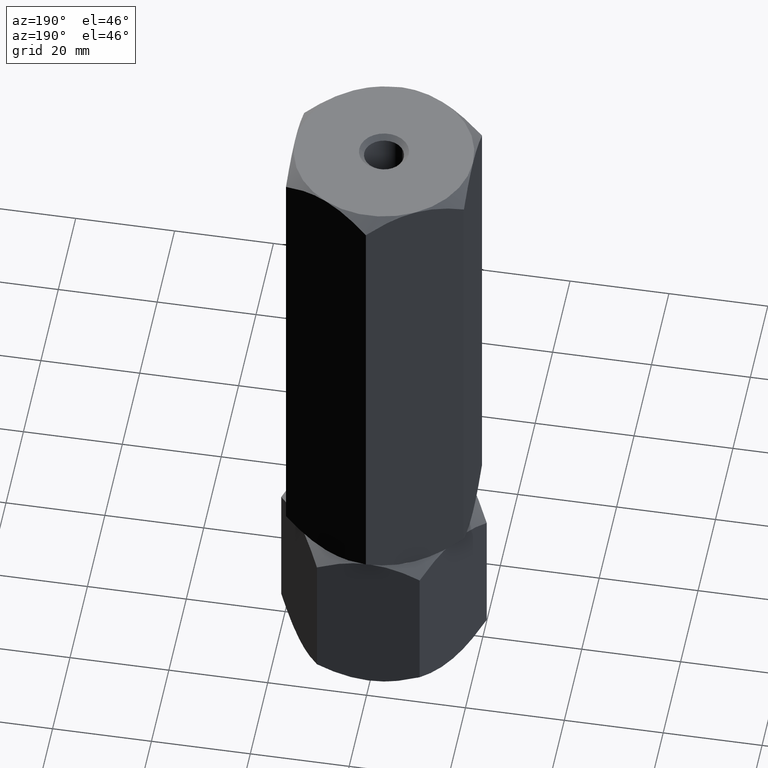
[diagram: clean part render]
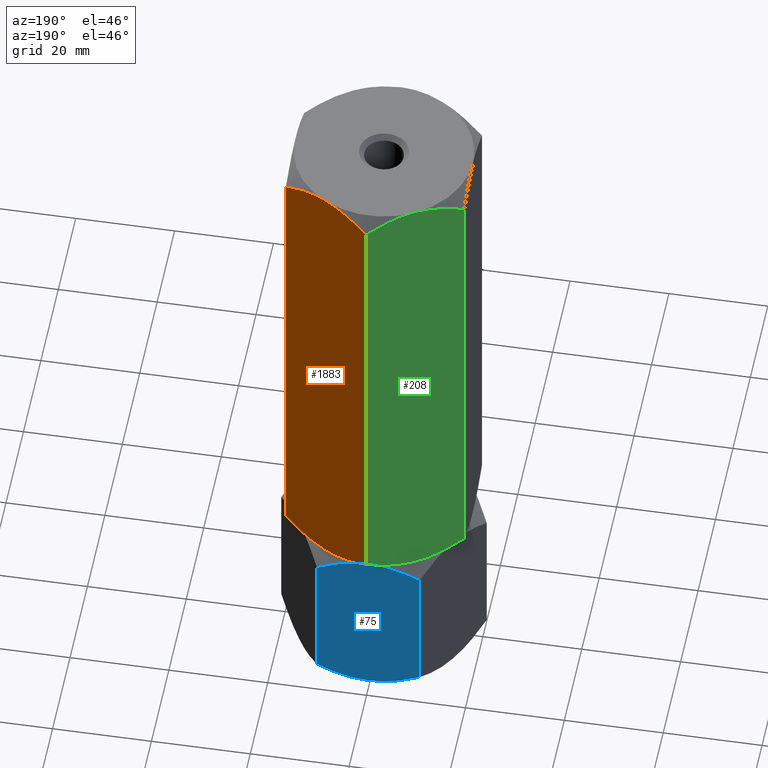
[diagram: same view with three faces highlighted in distinct colors, each labeled with its STEP entity id]
A machine part, auxiliary view with three faces highlighted in distinct colors.
Their STEP definitions:

[orange] entity #1883 — the highlighted planar face has unit normal (-0.5, -0.866, 0).
#14 = CARTESIAN_POINT ( 'NONE',  ( 9.790461530629878339, 15.13208409062669269, 133.3160004768592160 ) ) ;
#39 = DIRECTION ( 'NONE',  ( -0.000000000000000000, -0.000000000000000000, -1.000000000000000000 ) ) ;
#46 = CARTESIAN_POINT ( 'NONE',  ( 18.00000000000000355, 10.39230484541326582, 130.5487236425067863 ) ) ;
#47 = CARTESIAN_POINT ( 'NONE',  ( 7.023280245922047804, 16.72971695024925154, 33.47205593243187138 ) ) ;
#161 = CARTESIAN_POINT ( 'NONE',  ( 1.411330396252046038, 19.96977770663491469, 35.30311103996820066 ) ) ;
#173 = B_SPLINE_CURVE_WITH_KNOTS ( 'NONE', 3,
 ( #339, #161, #1904, #1275, #965, #47, #987, #639, #954, #204 ),
 .UNSPECIFIED., .F., .F.,
 ( 4, 2, 2, 2, 4 ),
 ( 2.544307986820942635E-07, 0.005386537354063077737, 0.008079678815695275074, 0.009426249546511375477, 0.01077282027732747414 ),
 .UNSPECIFIED. ) ;
#204 = CARTESIAN_POINT ( 'NONE',  ( 9.000000000000001776, 15.58845726811989607, 33.33333333333330017 ) ) ;
#339 = CARTESIAN_POINT ( 'NONE',  ( 8.283054731729360895E-16, 20.78460969082653165, 36.11794302415982116 ) ) ;
#351 = LINE ( 'NONE', #1264, #814 ) ;
#364 = EDGE_CURVE ( 'NONE', #1896, #1866, #1792, .T. ) ;
#450 = B_SPLINE_CURVE_WITH_KNOTS ( 'NONE', 3,
 ( #923, #1719, #1126, #1914, #2049, #1451 ),
 .UNSPECIFIED., .F., .F.,
 ( 4, 2, 4 ),
 ( 0.01077282027732746721, 0.01612137750481873119, 0.02146993473230999344 ),
 .UNSPECIFIED. ) ;
#507 = LINE ( 'NONE', #834, #1110 ) ;
#528 = ORIENTED_EDGE ( 'NONE', *, *, #1933, .F. ) ;
#627 = CARTESIAN_POINT ( 'NONE',  ( 16.59030399953601531, 11.20619321075668751, 35.30405465881634797 ) ) ;
#638 = EDGE_CURVE ( 'NONE', #1178, #1682, #450, .T. ) ;
#639 = CARTESIAN_POINT ( 'NONE',  ( 8.209538469370123437, 16.04483044561310123, 33.35066618980737019 ) ) ;
#646 = CARTESIAN_POINT ( 'NONE',  ( 9.394125676616232212, 15.36090870263097052, 133.3333333333332860 ) ) ;
#648 = CARTESIAN_POINT ( 'NONE',  ( 9.000000000000001776, 15.58845726811989607, 33.33333333333330017 ) ) ;
#661 = CARTESIAN_POINT ( 'NONE',  ( 18.00000000000000000, 10.39230484541326760, 36.11794302415981406 ) ) ;
#682 = CARTESIAN_POINT ( 'NONE',  ( 16.58866960374796307, 11.20713682960488278, 131.3635556266983428 ) ) ;
#705 = PLANE ( 'NONE',  #816 ) ;
#796 = CARTESIAN_POINT ( 'NONE',  ( 8.283054731729360895E-16, 20.78460969082653165, 36.11794302415982116 ) ) ;
#814 = VECTOR ( 'NONE', #1909, 1000.000000000000000 ) ;
#816 = AXIS2_PLACEMENT_3D ( 'NONE', #1330, #1838, #885 ) ;
#827 = EDGE_LOOP ( 'NONE', ( #1412, #1458, #1849, #528, #957, #1243 ) ) ;
#834 = CARTESIAN_POINT ( 'NONE',  ( -1.925929944387235853E-30, 20.78460969082653165, 133.3333333333333144 ) ) ;
#838 = EDGE_CURVE ( 'NONE', #2031, #1178, #2015, .T. ) ;
#885 = DIRECTION ( 'NONE',  ( 0.8660254037844385966, -0.5000000000000000000, 0.000000000000000000 ) ) ;
#923 = CARTESIAN_POINT ( 'NONE',  ( 9.000000000000000000, 15.58845726811989252, 133.3333333333333144 ) ) ;
#954 = CARTESIAN_POINT ( 'NONE',  ( 8.605874323383771340, 15.81600583360882517, 33.33333333333330017 ) ) ;
#957 = ORIENTED_EDGE ( 'NONE', *, *, #1974, .F. ) ;
#965 = CARTESIAN_POINT ( 'NONE',  ( 5.858009779716801368, 17.40248616759157585, 33.67389643558856704 ) ) ;
#975 = CARTESIAN_POINT ( 'NONE',  ( 15.13928418966203360, 12.04393988858690712, 34.60590803483753319 ) ) ;
#987 = CARTESIAN_POINT ( 'NONE',  ( 7.415748492146454929, 16.50312530264320898, 33.42028022345144933 ) ) ;
#996 = CARTESIAN_POINT ( 'NONE',  ( 10.58425150785354774, 14.67378923359657961, 133.2463864432151013 ) ) ;
#1110 = VECTOR ( 'NONE', #39, 1000.000000000000000 ) ;
#1126 = CARTESIAN_POINT ( 'NONE',  ( 5.895697476400526327, 17.38072716576608912, 133.0569374262117321 ) ) ;
#1151 = CARTESIAN_POINT ( 'NONE',  ( 12.14199022028320485, 13.77442836864822162, 132.9927702310780546 ) ) ;
#1178 = VERTEX_POINT ( 'NONE', #1815 ) ;
#1185 = CARTESIAN_POINT ( 'NONE',  ( 18.00000000000000000, 10.39230484541326760, 36.11794302415981406 ) ) ;
#1198 = FACE_OUTER_BOUND ( 'NONE', #827, .T. ) ;
#1243 = ORIENTED_EDGE ( 'NONE', *, *, #638, .F. ) ;
#1264 = CARTESIAN_POINT ( 'NONE',  ( 18.00000000000000000, 10.39230484541326760, 133.3333333333333144 ) ) ;
#1273 = CARTESIAN_POINT ( 'NONE',  ( 12.10430252359948256, 13.79618737047370303, 33.60972924045488952 ) ) ;
#1275 = CARTESIAN_POINT ( 'NONE',  ( 5.097327296964724752, 17.84166640377631907, 33.87041888916230903 ) ) ;
#1309 = CARTESIAN_POINT ( 'NONE',  ( 15.14539811114619106, 12.04041001437222569, 132.0559502554434346 ) ) ;
#1330 = CARTESIAN_POINT ( 'NONE',  ( 18.00000000000000000, 10.39230484541326760, 133.3333333333333144 ) ) ;
#1336 = VERTEX_POINT ( 'NONE', #796 ) ;
#1384 = CARTESIAN_POINT ( 'NONE',  ( 2.023902932232340556E-15, 20.78460969082653165, 130.5487236425067863 ) ) ;
#1412 = ORIENTED_EDGE ( 'NONE', *, *, #838, .F. ) ;
#1440 = CARTESIAN_POINT ( 'NONE',  ( 10.56546083169953754, 14.68463803553235181, 33.33333333333330017 ) ) ;
#1451 = CARTESIAN_POINT ( 'NONE',  ( 2.023902932232340556E-15, 20.78460969082653165, 130.5487236425067863 ) ) ;
#1458 = ORIENTED_EDGE ( 'NONE', *, *, #1551, .T. ) ;
#1551 = EDGE_CURVE ( 'NONE', #2031, #1866, #351, .T. ) ;
#1583 = CARTESIAN_POINT ( 'NONE',  ( 10.97671975407795841, 14.44719758599053705, 133.1946107342347148 ) ) ;
#1584 = CARTESIAN_POINT ( 'NONE',  ( 9.000000000000001776, 15.58845726811989607, 33.33333333333330017 ) ) ;
#1682 = VERTEX_POINT ( 'NONE', #1384 ) ;
#1719 = CARTESIAN_POINT ( 'NONE',  ( 7.434539168300460688, 16.49227650070744033, 133.3333333333333144 ) ) ;
#1787 = CARTESIAN_POINT ( 'NONE',  ( 9.000000000000000000, 15.58845726811989252, 133.3333333333333144 ) ) ;
#1792 = B_SPLINE_CURVE_WITH_KNOTS ( 'NONE', 3,
 ( #648, #1440, #1273, #975, #627, #661 ),
 .UNSPECIFIED., .F., .F.,
 ( 4, 2, 4 ),
 ( 0.01077282027732747414, 0.01612137750481873813, 0.02146993473231000038 ),
 .UNSPECIFIED. ) ;
#1815 = CARTESIAN_POINT ( 'NONE',  ( 9.000000000000000000, 15.58845726811989252, 133.3333333333333144 ) ) ;
#1838 = DIRECTION ( 'NONE',  ( -0.5000000000000001110, -0.8660254037844387076, 0.000000000000000000 ) ) ;
#1849 = ORIENTED_EDGE ( 'NONE', *, *, #364, .F. ) ;
#1866 = VERTEX_POINT ( 'NONE', #1185 ) ;
#1883 = ADVANCED_FACE ( 'NONE', ( #1198 ), #705, .F. ) ;
#1896 = VERTEX_POINT ( 'NONE', #1584 ) ;
#1904 = CARTESIAN_POINT ( 'NONE',  ( 2.854601888853812941, 19.13650452186757178, 34.61071641122317288 ) ) ;
#1909 = DIRECTION ( 'NONE',  ( -0.000000000000000000, -0.000000000000000000, -1.000000000000000000 ) ) ;
#1914 = CARTESIAN_POINT ( 'NONE',  ( 2.860715810337968179, 19.13297464765287614, 132.0607586318291169 ) ) ;
#1933 = EDGE_CURVE ( 'NONE', #1336, #1896, #173, .T. ) ;
#1949 = CARTESIAN_POINT ( 'NONE',  ( 12.90267270303528235, 13.33524813246347129, 132.7962477775042771 ) ) ;
#1974 = EDGE_CURVE ( 'NONE', #1682, #1336, #507, .T. ) ;
#2015 = B_SPLINE_CURVE_WITH_KNOTS ( 'NONE', 3,
 ( #46, #682, #1309, #1949, #1151, #1583, #996, #14, #646, #1787 ),
 .UNSPECIFIED., .F., .F.,
 ( 4, 2, 2, 2, 4 ),
 ( 2.544307986816325776E-07, 0.005386537354063073400, 0.008079678815695268135, 0.009426249546511368538, 0.01077282027732746721 ),
 .UNSPECIFIED. ) ;
#2031 = VERTEX_POINT ( 'NONE', #2038 ) ;
#2038 = CARTESIAN_POINT ( 'NONE',  ( 18.00000000000000355, 10.39230484541326582, 130.5487236425067863 ) ) ;
#2049 = CARTESIAN_POINT ( 'NONE',  ( 1.409696000463994014, 19.97072132548310464, 131.3626120078502595 ) ) ;

[blue] entity #75 — the highlighted planar face has unit normal (0, -1, 0).
#40 = CARTESIAN_POINT ( 'NONE',  ( 3.137971139320011371, 17.99999999999999289, 0.2661507737096521775 ) ) ;
#48 = B_SPLINE_CURVE_WITH_KNOTS ( 'NONE', 3,
 ( #316, #939, #159, #636, #1258, #325, #952, #1591, #169, #377, #1612, #1306 ),
 .UNSPECIFIED., .F., .F.,
 ( 4, 2, 2, 2, 2, 4 ),
 ( 0.05087049060338693501, 0.05355718337380665356, 0.05624387614422636517, 0.05893056891464608371, 0.06027391529985593605, 0.06161726168506579532 ),
 .UNSPECIFIED. ) ;
#75 = ADVANCED_FACE ( 'NONE', ( #1669 ), #857, .F. ) ;
#86 = DIRECTION ( 'NONE',  ( 0.000000000000000000, -0.000000000000000000, -1.000000000000000000 ) ) ;
#92 = EDGE_CURVE ( 'NONE', #221, #912, #878, .T. ) ;
#94 = CARTESIAN_POINT ( 'NONE',  ( 4.469866588357239934, 18.00000000000000711, 0.5416378219639089719 ) ) ;
#98 = DIRECTION ( 'NONE',  ( -0.000000000000000000, -0.000000000000000000, -1.000000000000000000 ) ) ;
#124 = ORIENTED_EDGE ( 'NONE', *, *, #1248, .F. ) ;
#158 = B_SPLINE_CURVE_WITH_KNOTS ( 'NONE', 3,
 ( #1049, #1710, #886, #1993, #284, #1212, #1869, #1514, #906, #416, #1199, #296 ),
 .UNSPECIFIED., .F., .F.,
 ( 4, 2, 2, 2, 2, 4 ),
 ( 0.05087049060338693501, 0.05355718337380664662, 0.05624387614422635823, 0.05893056891464606983, 0.06027391529985592911, 0.06161726168506578838 ),
 .UNSPECIFIED. ) ;
#159 = CARTESIAN_POINT ( 'NONE',  ( -8.755178905241962184, 17.99999999999999645, 2.001545844721461354 ) ) ;
#169 = CARTESIAN_POINT ( 'NONE',  ( -1.804565745311151437, 18.00000000000000355, 0.08461098684225840105 ) ) ;
#221 = VERTEX_POINT ( 'NONE', #1691 ) ;
#224 = CARTESIAN_POINT ( 'NONE',  ( -4.469866588357223058, 18.00000000000000355, 32.79169551136941152 ) ) ;
#233 = CARTESIAN_POINT ( 'NONE',  ( 3.582737890600643738, 18.00000000000000000, 0.3479872628012178337 ) ) ;
#284 = CARTESIAN_POINT ( 'NONE',  ( 6.223364658448745423, 18.00000000000000355, 32.30597062596897473 ) ) ;
#296 = CARTESIAN_POINT ( 'NONE',  ( 0.000000000000000000, 18.00000000000000000, 33.33333333333330017 ) ) ;
#303 = LINE ( 'NONE', #904, #1169 ) ;
#316 = CARTESIAN_POINT ( 'NONE',  ( -10.39230484541326582, 18.00000000000000000, 2.784609690826517436 ) ) ;
#325 = CARTESIAN_POINT ( 'NONE',  ( -4.490362039994832521, 18.00000000000000000, 0.5330411745022592962 ) ) ;
#332 = ORIENTED_EDGE ( 'NONE', *, *, #1190, .F. ) ;
#359 = CARTESIAN_POINT ( 'NONE',  ( -4.913571642337144496, 18.00000000000000355, 32.67948957968728507 ) ) ;
#377 = CARTESIAN_POINT ( 'NONE',  ( -0.9002413815126235619, 18.00000000000000000, 0.01685687241959241828 ) ) ;
#389 = CARTESIAN_POINT ( 'NONE',  ( -3.582737890600629527, 18.00000000000000000, 32.98534607053208845 ) ) ;
#416 = CARTESIAN_POINT ( 'NONE',  ( 0.9002413815126234509, 18.00000000000000355, 33.31647646091370518 ) ) ;
#525 = CARTESIAN_POINT ( 'NONE',  ( 0.000000000000000000, 18.00000000000000000, 33.33333333333330017 ) ) ;
#529 = EDGE_CURVE ( 'NONE', #221, #1424, #158, .T. ) ;
#531 = VERTEX_POINT ( 'NONE', #1861 ) ;
#613 = DIRECTION ( 'NONE',  ( -0.000000000000000000, -0.000000000000000000, -1.000000000000000000 ) ) ;
#636 = CARTESIAN_POINT ( 'NONE',  ( -7.075106353536209980, 18.00000000000000000, 1.325263476329348267 ) ) ;
#659 = CARTESIAN_POINT ( 'NONE',  ( -8.776755605963906248, 18.00000000000000355, 31.35649826223145453 ) ) ;
#669 = EDGE_LOOP ( 'NONE', ( #1434, #1477, #332, #742, #124, #873 ) ) ;
#672 = CARTESIAN_POINT ( 'NONE',  ( 4.913571642337147161, 18.00000000000000000, 0.6538437536460134369 ) ) ;
#723 = CARTESIAN_POINT ( 'NONE',  ( 10.39230484541325872, 18.00000000000000000, 2.784609690826514328 ) ) ;
#742 = ORIENTED_EDGE ( 'NONE', *, *, #1763, .F. ) ;
#766 = B_SPLINE_CURVE_WITH_KNOTS ( 'NONE', 3,
 ( #1766, #1782, #1131, #40, #233, #94, #672, #1312, #1497, #723 ),
 .UNSPECIFIED., .F., .F.,
 ( 4, 2, 2, 2, 4 ),
 ( 0.06161726168506579532, 0.06431523531013787209, 0.06566422212267390701, 0.06701320893520994193, 0.07240915618535409548 ),
 .UNSPECIFIED. ) ;
#787 = B_SPLINE_CURVE_WITH_KNOTS ( 'NONE', 3,
 ( #525, #1778, #1962, #1805, #389, #224, #359, #1620, #659, #1284 ),
 .UNSPECIFIED., .F., .F.,
 ( 4, 2, 2, 2, 4 ),
 ( 0.06161726168506578838, 0.06431523531013785822, 0.06566422212267389313, 0.06701320893520992805, 0.07240915618535409548 ),
 .UNSPECIFIED. ) ;
#839 = AXIS2_PLACEMENT_3D ( 'NONE', #1489, #1027, #86 ) ;
#857 = PLANE ( 'NONE',  #839 ) ;
#873 = ORIENTED_EDGE ( 'NONE', *, *, #1800, .F. ) ;
#878 = LINE ( 'NONE', #1516, #1834 ) ;
#886 = CARTESIAN_POINT ( 'NONE',  ( 8.755178905241953302, 18.00000000000000000, 31.33178748861184459 ) ) ;
#904 = CARTESIAN_POINT ( 'NONE',  ( -10.39230484541326582, 18.00000000000000000, 33.33333333333330017 ) ) ;
#906 = CARTESIAN_POINT ( 'NONE',  ( 1.804565745311149216, 17.99999999999999645, 33.24872234649103575 ) ) ;
#912 = VERTEX_POINT ( 'NONE', #1641 ) ;
#939 = CARTESIAN_POINT ( 'NONE',  ( -9.584903723681016174, 18.00000000000000355, 2.380909129960397497 ) ) ;
#952 = CARTESIAN_POINT ( 'NONE',  ( -3.609079520572075594, 17.99999999999999289, 0.3366946526511033211 ) ) ;
#1027 = DIRECTION ( 'NONE',  ( 0.000000000000000000, -1.000000000000000000, 0.000000000000000000 ) ) ;
#1049 = CARTESIAN_POINT ( 'NONE',  ( 10.39230484541325872, 18.00000000000000000, 30.54872364250678274 ) ) ;
#1131 = CARTESIAN_POINT ( 'NONE',  ( 1.799853003699884546, 18.00000000000000000, 0.06823388440832033053 ) ) ;
#1169 = VECTOR ( 'NONE', #613, 1000.000000000000000 ) ;
#1190 = EDGE_CURVE ( 'NONE', #1967, #912, #766, .T. ) ;
#1199 = CARTESIAN_POINT ( 'NONE',  ( 0.4494445606874132304, 18.00000000000000000, 33.33333333333330017 ) ) ;
#1212 = CARTESIAN_POINT ( 'NONE',  ( 4.490362039994821863, 18.00000000000000355, 32.80029215883104143 ) ) ;
#1248 = EDGE_CURVE ( 'NONE', #531, #1696, #303, .T. ) ;
#1258 = CARTESIAN_POINT ( 'NONE',  ( -6.223364658448756970, 18.00000000000000000, 1.027362707364319450 ) ) ;
#1260 = CARTESIAN_POINT ( 'NONE',  ( 0.000000000000000000, 18.00000000000000000, 0.000000000000000000 ) ) ;
#1284 = CARTESIAN_POINT ( 'NONE',  ( -10.39230484541326582, 18.00000000000000000, 30.54872364250677919 ) ) ;
#1306 = CARTESIAN_POINT ( 'NONE',  ( 0.000000000000000000, 18.00000000000000000, 0.000000000000000000 ) ) ;
#1312 = CARTESIAN_POINT ( 'NONE',  ( 7.110040999954858165, 18.00000000000000711, 1.279934933447799628 ) ) ;
#1424 = VERTEX_POINT ( 'NONE', #1795 ) ;
#1434 = ORIENTED_EDGE ( 'NONE', *, *, #529, .F. ) ;
#1477 = ORIENTED_EDGE ( 'NONE', *, *, #92, .T. ) ;
#1489 = CARTESIAN_POINT ( 'NONE',  ( 10.39230484541325872, 18.00000000000000000, 33.33333333333330017 ) ) ;
#1497 = CARTESIAN_POINT ( 'NONE',  ( 8.776755605963906248, 17.99999999999999645, 1.976835071101844088 ) ) ;
#1514 = CARTESIAN_POINT ( 'NONE',  ( 2.259904121284829426, 18.00000000000000711, 33.19747394958513098 ) ) ;
#1516 = CARTESIAN_POINT ( 'NONE',  ( 10.39230484541325872, 18.00000000000000000, 33.33333333333330017 ) ) ;
#1591 = CARTESIAN_POINT ( 'NONE',  ( -2.259904121284828538, 18.00000000000000000, 0.1358593837481692213 ) ) ;
#1612 = CARTESIAN_POINT ( 'NONE',  ( -0.4494445606874136190, 18.00000000000000355, 7.199780051661526689E-18 ) ) ;
#1620 = CARTESIAN_POINT ( 'NONE',  ( -7.110040999954855501, 17.99999999999999645, 32.05339839988549500 ) ) ;
#1641 = CARTESIAN_POINT ( 'NONE',  ( 10.39230484541325872, 18.00000000000000000, 2.784609690826514328 ) ) ;
#1669 = FACE_OUTER_BOUND ( 'NONE', #669, .T. ) ;
#1691 = CARTESIAN_POINT ( 'NONE',  ( 10.39230484541325872, 18.00000000000000000, 30.54872364250678274 ) ) ;
#1696 = VERTEX_POINT ( 'NONE', #1842 ) ;
#1710 = CARTESIAN_POINT ( 'NONE',  ( 9.584903723681012622, 18.00000000000000000, 30.95242420337290312 ) ) ;
#1763 = EDGE_CURVE ( 'NONE', #1696, #1967, #48, .T. ) ;
#1766 = CARTESIAN_POINT ( 'NONE',  ( 0.000000000000000000, 18.00000000000000000, 0.000000000000000000 ) ) ;
#1778 = CARTESIAN_POINT ( 'NONE',  ( -0.9026633666619896523, 18.00000000000000711, 33.33333333333330728 ) ) ;
#1782 = CARTESIAN_POINT ( 'NONE',  ( 0.9026633666619912066, 18.00000000000000355, -1.524659305057740610E-17 ) ) ;
#1795 = CARTESIAN_POINT ( 'NONE',  ( 0.000000000000000000, 18.00000000000000000, 33.33333333333330017 ) ) ;
#1800 = EDGE_CURVE ( 'NONE', #1424, #531, #787, .T. ) ;
#1805 = CARTESIAN_POINT ( 'NONE',  ( -3.137971139319999381, 18.00000000000000000, 33.06718255962364594 ) ) ;
#1834 = VECTOR ( 'NONE', #98, 1000.000000000000000 ) ;
#1842 = CARTESIAN_POINT ( 'NONE',  ( -10.39230484541326582, 18.00000000000000000, 2.784609690826517436 ) ) ;
#1861 = CARTESIAN_POINT ( 'NONE',  ( -10.39230484541326582, 18.00000000000000000, 30.54872364250677919 ) ) ;
#1869 = CARTESIAN_POINT ( 'NONE',  ( 3.609079520572076483, 18.00000000000000355, 32.99663868068220296 ) ) ;
#1962 = CARTESIAN_POINT ( 'NONE',  ( -1.799853003699874110, 18.00000000000000355, 33.26509944892498538 ) ) ;
#1967 = VERTEX_POINT ( 'NONE', #1260 ) ;
#1993 = CARTESIAN_POINT ( 'NONE',  ( 7.075106353536198434, 17.99999999999999289, 32.00806985700393170 ) ) ;

[green] entity #208 — the highlighted planar face has unit normal (0.5, -0.866, 0).
#1 = ORIENTED_EDGE ( 'NONE', *, *, #1089, .F. ) ;
#39 = DIRECTION ( 'NONE',  ( -0.000000000000000000, -0.000000000000000000, -1.000000000000000000 ) ) ;
#128 = DIRECTION ( 'NONE',  ( -0.000000000000000000, -0.000000000000000000, -1.000000000000000000 ) ) ;
#152 = VECTOR ( 'NONE', #128, 1000.000000000000000 ) ;
#182 = VERTEX_POINT ( 'NONE', #1872 ) ;
#208 = ADVANCED_FACE ( 'NONE', ( #1364 ), #749, .F. ) ;
#248 = CARTESIAN_POINT ( 'NONE',  ( -18.00000000000000355, 10.39230484541327293, 130.5487236425067863 ) ) ;
#261 = CARTESIAN_POINT ( 'NONE',  ( -7.023280245922044251, 16.72971695024924799, 133.1946107342347148 ) ) ;
#348 = ORIENTED_EDGE ( 'NONE', *, *, #1490, .F. ) ;
#352 = VERTEX_POINT ( 'NONE', #1453 ) ;
#423 = CARTESIAN_POINT ( 'NONE',  ( 8.283054731729360895E-16, 20.78460969082653165, 36.11794302415982116 ) ) ;
#426 = CARTESIAN_POINT ( 'NONE',  ( -2.854601888853809832, 19.13650452186757533, 132.0559502554434346 ) ) ;
#430 = CARTESIAN_POINT ( 'NONE',  ( -7.434539168300455358, 16.49227650070745099, 33.33333333333330017 ) ) ;
#443 = CARTESIAN_POINT ( 'NONE',  ( -8.999999999999998224, 15.58845726811990318, 133.3333333333333144 ) ) ;
#448 = CARTESIAN_POINT ( 'NONE',  ( -9.790461530629874787, 15.13208409062669979, 33.35066618980739861 ) ) ;
#452 = CARTESIAN_POINT ( 'NONE',  ( -5.895697476400522774, 17.38072716576609977, 33.60972924045488952 ) ) ;
#507 = LINE ( 'NONE', #834, #1110 ) ;
#570 = EDGE_CURVE ( 'NONE', #1682, #182, #799, .T. ) ;
#577 = ORIENTED_EDGE ( 'NONE', *, *, #1867, .F. ) ;
#581 = ORIENTED_EDGE ( 'NONE', *, *, #1974, .T. ) ;
#594 = CARTESIAN_POINT ( 'NONE',  ( -1.411330396252047370, 19.96977770663491469, 131.3635556266983428 ) ) ;
#615 = CARTESIAN_POINT ( 'NONE',  ( -8.605874323383766011, 15.81600583360882517, 133.3333333333332860 ) ) ;
#619 = CARTESIAN_POINT ( 'NONE',  ( -16.58866960374795596, 11.20713682960489166, 35.30311103996820776 ) ) ;
#629 = CARTESIAN_POINT ( 'NONE',  ( -10.97671975407795308, 14.44719758599054771, 33.47205593243188559 ) ) ;
#706 = AXIS2_PLACEMENT_3D ( 'NONE', #910, #1539, #1680 ) ;
#749 = PLANE ( 'NONE',  #706 ) ;
#765 = CARTESIAN_POINT ( 'NONE',  ( -5.097327296964720311, 17.84166640377632618, 132.7962477775042771 ) ) ;
#796 = CARTESIAN_POINT ( 'NONE',  ( 8.283054731729360895E-16, 20.78460969082653165, 36.11794302415982116 ) ) ;
#799 = B_SPLINE_CURVE_WITH_KNOTS ( 'NONE', 3,
 ( #1347, #594, #426, #765, #1065, #261, #1220, #1391, #615, #443 ),
 .UNSPECIFIED., .F., .F.,
 ( 4, 2, 2, 2, 4 ),
 ( 2.544307986824694462E-07, 0.005386537354063072533, 0.008079678815695268135, 0.009426249546511366803, 0.01077282027732746547 ),
 .UNSPECIFIED. ) ;
#834 = CARTESIAN_POINT ( 'NONE',  ( -1.925929944387235853E-30, 20.78460969082653165, 133.3333333333333144 ) ) ;
#836 = ORIENTED_EDGE ( 'NONE', *, *, #570, .F. ) ;
#852 = VERTEX_POINT ( 'NONE', #1608 ) ;
#887 = CARTESIAN_POINT ( 'NONE',  ( -18.00000000000000355, 10.39230484541327293, 133.3333333333333144 ) ) ;
#910 = CARTESIAN_POINT ( 'NONE',  ( -1.925929944387235853E-30, 20.78460969082653165, 133.3333333333333144 ) ) ;
#911 = B_SPLINE_CURVE_WITH_KNOTS ( 'NONE', 3,
 ( #1858, #430, #452, #2032, #1848, #423 ),
 .UNSPECIFIED., .F., .F.,
 ( 4, 2, 4 ),
 ( 0.01077282027732747068, 0.01612137750481873466, 0.02146993473231000038 ),
 .UNSPECIFIED. ) ;
#1065 = CARTESIAN_POINT ( 'NONE',  ( -5.858009779716799592, 17.40248616759158296, 132.9927702310780546 ) ) ;
#1089 = EDGE_CURVE ( 'NONE', #352, #852, #1730, .T. ) ;
#1099 = CARTESIAN_POINT ( 'NONE',  ( -12.90267270303527525, 13.33524813246348373, 33.87041888916230903 ) ) ;
#1110 = VECTOR ( 'NONE', #39, 1000.000000000000000 ) ;
#1220 = CARTESIAN_POINT ( 'NONE',  ( -7.415748492146447823, 16.50312530264321609, 133.2463864432151013 ) ) ;
#1261 = CARTESIAN_POINT ( 'NONE',  ( -15.14539811114619283, 12.04041001437223635, 34.61071641122316578 ) ) ;
#1328 = EDGE_LOOP ( 'NONE', ( #836, #581, #348, #1, #1799, #577 ) ) ;
#1336 = VERTEX_POINT ( 'NONE', #796 ) ;
#1347 = CARTESIAN_POINT ( 'NONE',  ( 2.023902932232340556E-15, 20.78460969082653165, 130.5487236425067863 ) ) ;
#1364 = FACE_OUTER_BOUND ( 'NONE', #1328, .T. ) ;
#1373 = CARTESIAN_POINT ( 'NONE',  ( -10.56546083169953576, 14.68463803553235536, 133.3333333333332860 ) ) ;
#1381 = VERTEX_POINT ( 'NONE', #1633 ) ;
#1384 = CARTESIAN_POINT ( 'NONE',  ( 2.023902932232340556E-15, 20.78460969082653165, 130.5487236425067863 ) ) ;
#1391 = CARTESIAN_POINT ( 'NONE',  ( -8.209538469370118108, 16.04483044561310479, 133.3160004768592160 ) ) ;
#1409 = CARTESIAN_POINT ( 'NONE',  ( -18.00000000000000355, 10.39230484541327293, 36.11794302415982116 ) ) ;
#1453 = CARTESIAN_POINT ( 'NONE',  ( -18.00000000000000355, 10.39230484541327293, 36.11794302415982116 ) ) ;
#1487 = CARTESIAN_POINT ( 'NONE',  ( -8.999999999999998224, 15.58845726811990318, 133.3333333333333144 ) ) ;
#1490 = EDGE_CURVE ( 'NONE', #852, #1336, #911, .T. ) ;
#1539 = DIRECTION ( 'NONE',  ( 0.4999999999999997224, -0.8660254037844388186, 0.000000000000000000 ) ) ;
#1585 = CARTESIAN_POINT ( 'NONE',  ( -8.999999999999998224, 15.58845726811990318, 33.33333333333330017 ) ) ;
#1608 = CARTESIAN_POINT ( 'NONE',  ( -8.999999999999998224, 15.58845726811990318, 33.33333333333330017 ) ) ;
#1633 = CARTESIAN_POINT ( 'NONE',  ( -18.00000000000000355, 10.39230484541327293, 130.5487236425067863 ) ) ;
#1680 = DIRECTION ( 'NONE',  ( 0.8660254037844388186, 0.4999999999999997224, 0.000000000000000000 ) ) ;
#1682 = VERTEX_POINT ( 'NONE', #1384 ) ;
#1713 = EDGE_CURVE ( 'NONE', #1381, #352, #1829, .T. ) ;
#1730 = B_SPLINE_CURVE_WITH_KNOTS ( 'NONE', 3,
 ( #1409, #619, #1261, #1099, #2055, #629, #1905, #448, #1886, #1585 ),
 .UNSPECIFIED., .F., .F.,
 ( 4, 2, 2, 2, 4 ),
 ( 2.544307986796311447E-07, 0.005386537354063074268, 0.008079678815695273339, 0.009426249546511372007, 0.01077282027732747068 ),
 .UNSPECIFIED. ) ;
#1752 = B_SPLINE_CURVE_WITH_KNOTS ( 'NONE', 3,
 ( #1487, #1373, #1860, #1991, #1825, #248 ),
 .UNSPECIFIED., .F., .F.,
 ( 4, 2, 4 ),
 ( 0.01077282027732746547, 0.01612137750481872772, 0.02146993473230998997 ),
 .UNSPECIFIED. ) ;
#1799 = ORIENTED_EDGE ( 'NONE', *, *, #1713, .F. ) ;
#1825 = CARTESIAN_POINT ( 'NONE',  ( -16.59030399953601531, 11.20619321075669816, 131.3626120078502595 ) ) ;
#1829 = LINE ( 'NONE', #887, #152 ) ;
#1848 = CARTESIAN_POINT ( 'NONE',  ( -1.409696000463985133, 19.97072132548311174, 35.30405465881634797 ) ) ;
#1858 = CARTESIAN_POINT ( 'NONE',  ( -8.999999999999998224, 15.58845726811990318, 33.33333333333330017 ) ) ;
#1860 = CARTESIAN_POINT ( 'NONE',  ( -12.10430252359947900, 13.79618737047371546, 133.0569374262117606 ) ) ;
#1867 = EDGE_CURVE ( 'NONE', #182, #1381, #1752, .T. ) ;
#1872 = CARTESIAN_POINT ( 'NONE',  ( -8.999999999999998224, 15.58845726811990318, 133.3333333333333144 ) ) ;
#1886 = CARTESIAN_POINT ( 'NONE',  ( -9.394125676616230436, 15.36090870263098118, 33.33333333333330728 ) ) ;
#1905 = CARTESIAN_POINT ( 'NONE',  ( -10.58425150785354418, 14.67378923359658849, 33.42028022345146354 ) ) ;
#1974 = EDGE_CURVE ( 'NONE', #1682, #1336, #507, .T. ) ;
#1991 = CARTESIAN_POINT ( 'NONE',  ( -15.13928418966203360, 12.04393988858691600, 132.0607586318289748 ) ) ;
#2032 = CARTESIAN_POINT ( 'NONE',  ( -2.860715810337964626, 19.13297464765289035, 34.60590803483753319 ) ) ;
#2055 = CARTESIAN_POINT ( 'NONE',  ( -12.14199022028320130, 13.77442836864822695, 33.67389643558856704 ) ) ;